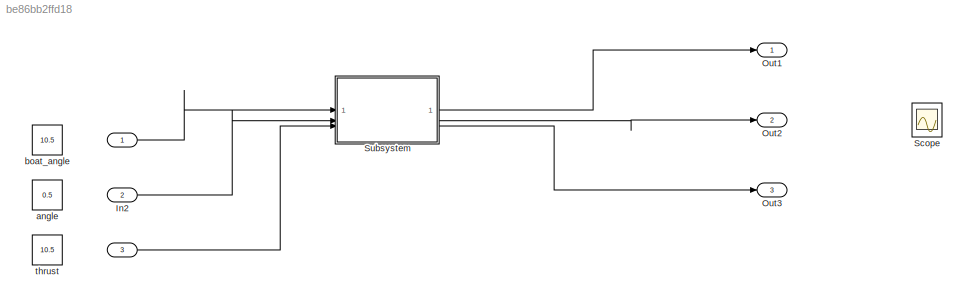
MODEL slx_be86bb2ffd18
KIND model
CONFIG AbsTol = auto
CONFIG EnableMultiTasking = off
CONFIG FixedStep = auto
CONFIG MaxStep = auto
CONFIG MinStep = auto
CONFIG RelTol = 1e-3
CONFIG SampleTimeConstraint = Unconstrained
CONFIG SolverName = VariableStepAuto
CONFIG StartTime = 0.0
CONFIG StopTime = 10.0
BLOCK [Inport]  
BLOCK [Inport]   
  Port = 3
BLOCK [Inport] In2
  Port = 2
BLOCK [Outport] Out1
BLOCK [Outport] Out2
  Port = 2
BLOCK [Outport] Out3
  Port = 3
BLOCK [Scope] Scope
  Floating = off
  NumInputPorts = 3
  ScopeSpecificationString = Simulink.scopes.TimeScopeBlockCfg('CurrentConfiguration', extmgr.ConfigurationSet(extmgr.Configuration('Core','General UI',true),extmgr.Configuration('Core','Source UI',true),extmgr.Configuration('Sources','WiredSimulink',true),extmgr.Configuration('Visuals','Time Domain',true,'SerializedDisplays',{struct('MinYLimReal','-152.60329','MaxYLimReal','152.53024','YLabelReal','','MinYLimMag',' 0.00000',...<+1410ch>
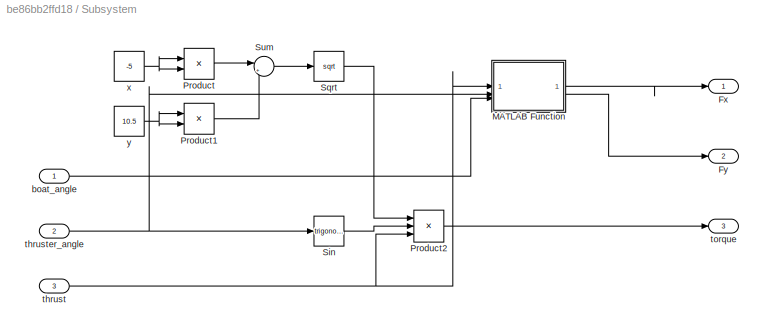
BLOCK [SubSystem] Subsystem
BLOCK [Outport] Subsystem/Fx
BLOCK [Outport] Subsystem/Fy
  Port = 2
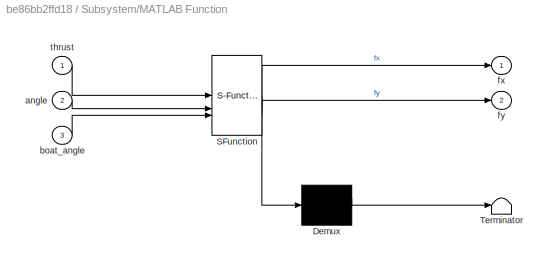
BLOCK [SubSystem] Subsystem/MATLAB Function
  ErrorFcn = Stateflow.Translate.translate
  PermitHierarchicalResolution = ExplicitOnly
  SFBlockType = MATLAB Function
  TreatAsAtomicUnit = on
BLOCK [Demux] Subsystem/MATLAB Function/ Demux 
  Outputs = 1
BLOCK [S-Function] Subsystem/MATLAB Function/ SFunction 
  EnableBusSupport = on
  FunctionName = sf_sfun
  PortCounts = [3 3]
  SFcnIsStateOwnerBlock = off
  SFunctionDeploymentMode = off
  Tag = Stateflow S-Function 2
BLOCK [Terminator] Subsystem/MATLAB Function/ Terminator 
BLOCK [Inport] Subsystem/MATLAB Function/angle
  Port = 2
BLOCK [Inport] Subsystem/MATLAB Function/boat_angle
  Port = 3
BLOCK [Outport] Subsystem/MATLAB Function/fx
BLOCK [Outport] Subsystem/MATLAB Function/fy
  Port = 2
BLOCK [Inport] Subsystem/MATLAB Function/thrust
BLOCK [Product] Subsystem/Product
BLOCK [Product] Subsystem/Product1
BLOCK [Product] Subsystem/Product2
  Inputs = 3
BLOCK [Trigonometry] Subsystem/Sin
BLOCK [Sqrt] Subsystem/Sqrt
BLOCK [Sum] Subsystem/Sum
  Inputs = |++
BLOCK [Inport] Subsystem/boat_angle
BLOCK [Inport] Subsystem/thrust
  Port = 3
BLOCK [Inport] Subsystem/thruster_angle
  Port = 2
BLOCK [Outport] Subsystem/torque
  Port = 3
BLOCK [Constant] Subsystem/x
  Value = -5
BLOCK [Constant] Subsystem/y
  Value = 10.5
BLOCK [Constant] angle
  Value = 0.5
BLOCK [Constant] boat_angle
  Value = 10.5
BLOCK [Constant] thrust
  Value = 10.5
LINE   :1 -> Subsystem:3
LINE  :1 -> Subsystem:1
LINE In2:1 -> Subsystem:2
LINE Subsystem/MATLAB Function:1 -> Subsystem/Fx:1
LINE Subsystem/MATLAB Function:2 -> Subsystem/Fy:1
LINE Subsystem/Product1:1 -> Subsystem/Sum:2
LINE Subsystem/Product2:1 -> Subsystem/torque:1
LINE Subsystem/Product:1 -> Subsystem/Sum:1
LINE Subsystem/Sin:1 -> Subsystem/Product2:2
LINE Subsystem/Sqrt:1 -> Subsystem/Product2:1
LINE Subsystem/Sum:1 -> Subsystem/Sqrt:1
LINE Subsystem/boat_angle:1 -> Subsystem/MATLAB Function:3
NET Subsystem/thrust:1 -> Subsystem/MATLAB Function:1, Subsystem/Product2:3
NET Subsystem/thruster_angle:1 -> Subsystem/MATLAB Function:2, Subsystem/Sin:1
NET Subsystem/x:1 -> Subsystem/Product:1, Subsystem/Product:2
NET Subsystem/y:1 -> Subsystem/Product1:1, Subsystem/Product1:2
LINE Subsystem:1 -> Out1:1
LINE Subsystem:2 -> Out2:1
LINE Subsystem:3 -> Out3:1
note: NET lines group one-source signal fan-out (src -> all destinations, sorted); 1:1 wires keep LINE
CHART Subsystem/MATLAB Function states=1 transitions=1
  STATE_LABEL 'eML_blk_kernel()'
  STATE_LABEL 'SCRIPT:\nfunction [fx,fy] = fcn(thrust, angle, boat_angle)\n\nRx = [cos(boat_angle) -sin(boat_angle); sin(boat_angle) cos(boat_angle)];\nf = [sin(angle); cos(angle)]*thrust;\nmf = Rx*f;\nfx = mf(1);\nfy = mf(2);'
CHART  states=0 transitions=0
